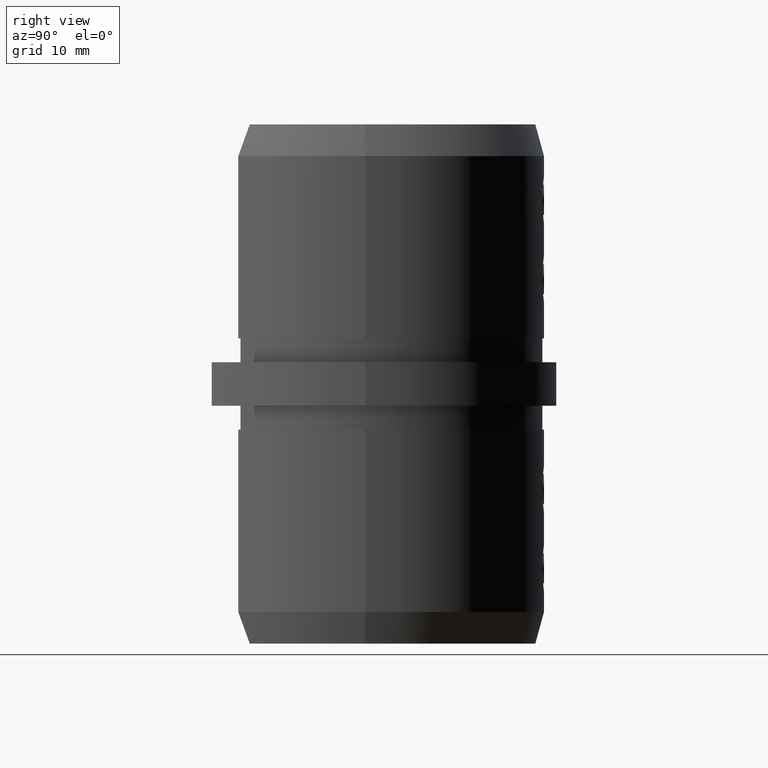
[diagram: clean part render]
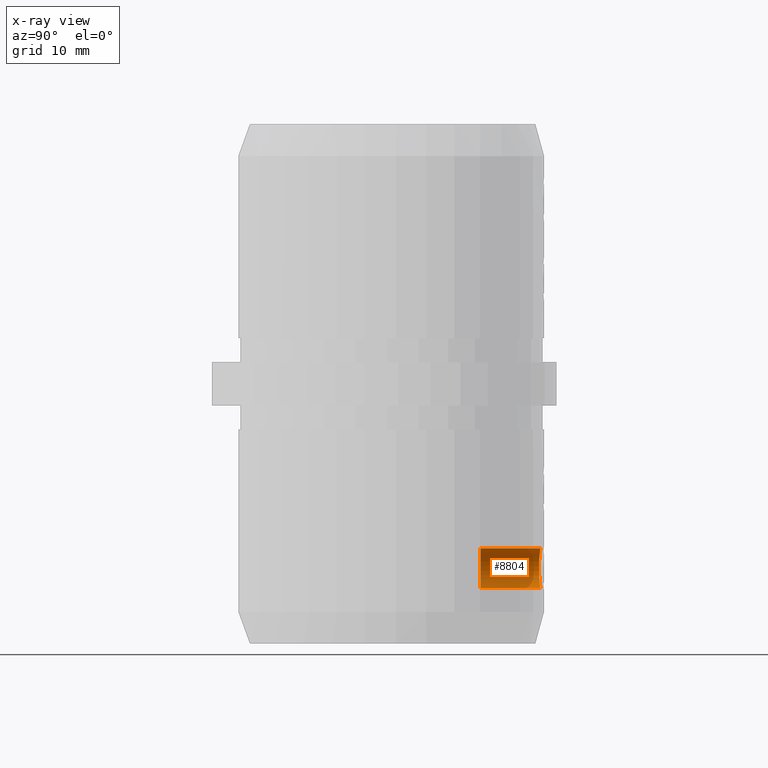
[diagram: x-ray — body ghosted, one internal face saturated and labeled with its STEP entity id]
A machine part, right view, then the same camera in x-ray: the body is ghosted and one INTERNAL B-rep face — a face not visible from any outside direction — is saturated and labeled: STEP entity #8804.
In plain terms, the highlighted cylindrical surface (edge-blend (fillet) strip) has radius 2.5 mm, axis along (0, -1, 0).
Its self-contained STEP definition (entity closure, byte-faithful):
#450 = VERTEX_POINT ( 'NONE', #2626 ) ;
#607 = VERTEX_POINT ( 'NONE', #18310 ) ;
#771 = DIRECTION ( 'NONE',  ( 0.0000000000000000000, 0.0000000000000000000, 1.000000000000000000 ) ) ;
#880 = CARTESIAN_POINT ( 'NONE',  ( -2.292983120268745200, 21.99141816133948900, -22.25305156649097400 ) ) ;
#1015 = CARTESIAN_POINT ( 'NONE',  ( -0.2847509243803166800, 22.14788986108721500, -20.76593492684926200 ) ) ;
#1088 = CARTESIAN_POINT ( 'NONE',  ( -1.213568255044008100, 22.10593495460642500, -21.06392528527055700 ) ) ;
#1169 = CARTESIAN_POINT ( 'NONE',  ( -1.650894172258326100, 22.06819132363886400, -25.12914229526788300 ) ) ;
#1237 = CARTESIAN_POINT ( 'NONE',  ( -0.9967863313151426000, 22.12038927817841800, -25.54304912313920900 ) ) ;
#1307 = CARTESIAN_POINT ( 'NONE',  ( -0.7681372788389454500, 22.13255594933633200, -25.62942003701284600 ) ) ;
#1376 = CARTESIAN_POINT ( 'NONE',  ( -2.057190390246440800, 22.02251045386027800, -24.67113877668603200 ) ) ;
#1445 = CARTESIAN_POINT ( 'NONE',  ( -2.435736324202206800, 21.97093788580954400, -22.68093806077536500 ) ) ;
#2451 = CARTESIAN_POINT ( 'NONE',  ( -0.7654449833223872000, 22.13268037902122000, -20.86971259934317000 ) ) ;
#2581 = CARTESIAN_POINT ( 'NONE',  ( -0.6475951645939612700, 22.13769928592403200, -20.83498234985427900 ) ) ;
#2626 = CARTESIAN_POINT ( 'NONE',  ( 0.0000000000000000000, 14.60000000000000000, -20.75000000000001100 ) ) ;
#2798 = CARTESIAN_POINT ( 'NONE',  ( -1.216178601106119700, 22.10574359763352300, -25.43462392852546800 ) ) ;
#2870 = CARTESIAN_POINT ( 'NONE',  ( -2.480019579879674000, 21.96432343748675100, -23.57584323722839100 ) ) ;
#2942 = CARTESIAN_POINT ( 'NONE',  ( -1.144081016189435900, 22.11087678328420100, -25.47322980531880200 ) ) ;
#3007 = CARTESIAN_POINT ( 'NONE',  ( -2.033660378672514000, 22.02542769086200300, -24.70461504022874200 ) ) ;
#3409 = CARTESIAN_POINT ( 'NONE',  ( 0.0000000000000000000, 14.60000000000000000, -23.25000000000000000 ) ) ;
#3977 = CARTESIAN_POINT ( 'NONE',  ( 0.0000000000000000000, 14.60000000000000100, -23.25000000000000000 ) ) ;
#4075 = CARTESIAN_POINT ( 'NONE',  ( -2.223095334505934800, 22.00099114357589500, -22.10566472250850700 ) ) ;
#4146 = CARTESIAN_POINT ( 'NONE',  ( -2.276384206087553900, 21.99371991982173900, -22.21571866378968700 ) ) ;
#4223 = CARTESIAN_POINT ( 'NONE',  ( -0.5272994195410698500, 22.14195788597984200, -20.80589437246492700 ) ) ;
#4290 = CARTESIAN_POINT ( 'NONE',  ( -1.878499780641288000, 22.04380448721416700, -21.59987592933498100 ) ) ;
#4358 = CARTESIAN_POINT ( 'NONE',  ( -2.242711401136413300, 21.99833356403103200, -24.35539948575312900 ) ) ;
#4428 = CARTESIAN_POINT ( 'NONE',  ( -1.033995601126281900, 22.11810929410043900, -25.52651350975921200 ) ) ;
#4497 = CARTESIAN_POINT ( 'NONE',  ( -0.4494029366992553500, 22.14424892383808100, -25.70961817555875200 ) ) ;
#4500 = CARTESIAN_POINT ( 'NONE',  ( -0.001850645534946095800, 22.15028157610912600, -25.74999948466982100 ) ) ;
#4556 = CARTESIAN_POINT ( 'NONE',  ( -1.556585925973928800, 22.07724053190082000, -25.20670555345172700 ) ) ;
#4632 = CARTESIAN_POINT ( 'NONE',  ( -1.357282191998328000, 22.09478192567434000, -25.34987527521396400 ) ) ;
#4860 = ORIENTED_EDGE ( 'NONE', *, *, #11110, .F. ) ;
#5620 = CARTESIAN_POINT ( 'NONE',  ( -0.9941371989826005600, 22.12054830374233900, -20.95580133291060300 ) ) ;
#5689 = CARTESIAN_POINT ( 'NONE',  ( -1.982748940744948300, 22.03160497090863500, -21.72713080616580000 ) ) ;
#5760 = CARTESIAN_POINT ( 'NONE',  ( -1.456521268031594900, 22.08634910284286000, -21.21770714482001800 ) ) ;
#5832 = CARTESIAN_POINT ( 'NONE',  ( -0.9189355390858382500, 22.12488523409878000, -20.92465835458422800 ) ) ;
#5972 = CARTESIAN_POINT ( 'NONE',  ( -0.6898510524489284100, 22.13599497977051200, -25.65328526708332600 ) ) ;
#6041 = CARTESIAN_POINT ( 'NONE',  ( -2.380942219422536700, 21.97894415771254700, -24.01342207941128100 ) ) ;
#6113 = CARTESIAN_POINT ( 'NONE',  ( -1.984624294022193600, 22.03137972332828600, -24.77042401768933300 ) ) ;
#6148 = VERTEX_POINT ( 'NONE', #6269 ) ;
#6184 = CARTESIAN_POINT ( 'NONE',  ( -1.425491913613060400, 22.08905168616393400, -25.30417916317992100 ) ) ;
#6252 = CARTESIAN_POINT ( 'NONE',  ( -1.797479572217719500, 22.05281524250483500, -24.98802358127597500 ) ) ;
#6269 = CARTESIAN_POINT ( 'NONE',  ( -3.061616997868370300E-016, 14.60000000000000000, -25.74999999999998900 ) ) ;
#7247 = CARTESIAN_POINT ( 'NONE',  ( -1.354723676355382700, 22.09499146214161400, -21.14847270401107300 ) ) ;
#7319 = CARTESIAN_POINT ( 'NONE',  ( -2.055481204376945500, 22.02272341495299600, -21.82638896065509800 ) ) ;
#7396 = CARTESIAN_POINT ( 'NONE',  ( -2.123550563184542400, 22.01415467317387700, -21.92818765777961300 ) ) ;
#7469 = CARTESIAN_POINT ( 'NONE',  ( -0.8042045014447523100, 22.13084530491960700, -20.88252956546657300 ) ) ;
#7531 = CARTESIAN_POINT ( 'NONE',  ( -0.8809497856616870200, 22.12694773802043000, -20.91000242841293800 ) ) ;
#7559 = CARTESIAN_POINT ( 'NONE',  ( -9.096257994911639300E-015, 22.15028165589723800, -25.74999999819781100 ) ) ;
#7597 = CARTESIAN_POINT ( 'NONE',  ( -0.5704540894283337500, 22.14053001052612400, -25.68439579923671100 ) ) ;
#7668 = CARTESIAN_POINT ( 'NONE',  ( -0.002775922596788522400, 22.15028142148017000, -25.74999845885026100 ) ) ;
#7691 = LINE ( 'NONE', #15198, #19322 ) ;
#7742 = CARTESIAN_POINT ( 'NONE',  ( -1.251838708683095100, 22.10308652045176800, -25.41439061401263200 ) ) ;
#7801 = CARTESIAN_POINT ( 'NONE',  ( -0.4089832398278381900, 22.14529430437870200, -25.71665889905715100 ) ) ;
#7873 = CARTESIAN_POINT ( 'NONE',  ( -1.959325154451814200, 22.03439988654000100, -24.80289060139584800 ) ) ;
#8804 = ADVANCED_FACE ( 'NONE', ( #10712 ), #18592, .F. ) ;
#8873 = CARTESIAN_POINT ( 'NONE',  ( -1.708961883686580500, 22.06227550503323400, -21.42350536194855300 ) ) ;
#8952 = CARTESIAN_POINT ( 'NONE',  ( -1.249242642735046300, 22.10328240496603800, -21.08411074450979700 ) ) ;
#9022 = CARTESIAN_POINT ( 'NONE',  ( -0.1630077294176920700, 22.14967998852111100, -20.75398721372849300 ) ) ;
#9090 = CARTESIAN_POINT ( 'NONE',  ( -1.141457939238801600, 22.11105761968156400, -21.02542265134438500 ) ) ;
#9158 = CARTESIAN_POINT ( 'NONE',  ( -1.031353104157768400, 22.11827386651590600, -20.97228838707495100 ) ) ;
#9231 = CARTESIAN_POINT ( 'NONE',  ( -2.224412072657927700, 22.00081357244085800, -24.39177323048359400 ) ) ;
#9296 = CARTESIAN_POINT ( 'NONE',  ( -2.495819732866158900, 21.96193623950958300, -23.08399557112384000 ) ) ;
#9362 = CARTESIAN_POINT ( 'NONE',  ( -0.9215983687561623000, 22.12473748876311000, -25.57428778708657200 ) ) ;
#9428 = CARTESIAN_POINT ( 'NONE',  ( -2.125111260784961200, 22.01395357398723400, -24.56930136175534000 ) ) ;
#9496 = CARTESIAN_POINT ( 'NONE',  ( -1.946435738101334400, 22.03592385266706800, -24.81901658131147700 ) ) ;
#9565 = AXIS2_PLACEMENT_3D ( 'NONE', #3409, #13141, #17818 ) ;
#9682 = B_SPLINE_CURVE_WITH_KNOTS ( 'NONE', 3,
 ( #20545, #4500, #11051, #17504 ),
 .UNSPECIFIED., .F., .F.,
 ( 4, 4 ),
 ( 0.5000000000000000000, 0.5001771055302192100 ),
 .UNSPECIFIED. ) ;
#10171 = ORIENTED_EDGE ( 'NONE', *, *, #14232, .T. ) ;
#10491 = CARTESIAN_POINT ( 'NONE',  ( -2.031892251763641100, 22.02564541426224000, -21.79291583588732800 ) ) ;
#10556 = CARTESIAN_POINT ( 'NONE',  ( -2.241440351484353100, 21.99850640002933100, -22.14202522010249300 ) ) ;
#10586 = DIRECTION ( 'NONE',  ( -0.0000000000000000000, -1.000000000000000000, 0.0000000000000000000 ) ) ;
#10622 = CARTESIAN_POINT ( 'NONE',  ( 0.0000000000000000000, 22.15028165348530800, -20.75000000000001100 ) ) ;
#10696 = CARTESIAN_POINT ( 'NONE',  ( -1.423026816542102300, 22.08926377687128500, -21.19411196922532200 ) ) ;
#10712 = FACE_OUTER_BOUND ( 'NONE', #16069, .T. ) ;
#10747 = AXIS2_PLACEMENT_3D ( 'NONE', #3977, #10586, #771 ) ;
#10770 = ORIENTED_EDGE ( 'NONE', *, *, #12487, .F. ) ;
#10837 = CARTESIAN_POINT ( 'NONE',  ( -2.416592352280113600, 21.97376683275005100, -23.89559018064081600 ) ) ;
#10907 = CARTESIAN_POINT ( 'NONE',  ( -0.1658028708923769400, 22.14965230168424500, -25.74582886344321500 ) ) ;
#10921 = CARTESIAN_POINT ( 'NONE',  ( -3.061616997868368400E-016, 14.60000000000000100, -25.74999999999998900 ) ) ;
#10981 = CARTESIAN_POINT ( 'NONE',  ( -0.8068891258324371000, 22.13071495079733000, -25.61655694950207300 ) ) ;
#11047 = CARTESIAN_POINT ( 'NONE',  ( -2.495998668997761800, 21.96190907041188100, -23.41328086444716300 ) ) ;
#11051 = CARTESIAN_POINT ( 'NONE',  ( -0.0009253380055504097900, 22.15028165341674400, -25.74999999723344900 ) ) ;
#11110 = EDGE_CURVE ( 'NONE', #18724, #607, #20208, .T. ) ;
#11111 = CARTESIAN_POINT ( 'NONE',  ( -1.107642938376212100, 22.11335305216725200, -25.49160383777822900 ) ) ;
#12199 = CARTESIAN_POINT ( 'NONE',  ( -1.995206779100227700, 22.03010450721801000, -21.74348991648638600 ) ) ;
#12270 = CARTESIAN_POINT ( 'NONE',  ( -0.6871426145726278200, 22.13610735861911000, -20.84593903641297200 ) ) ;
#12272 = DIRECTION ( 'NONE',  ( -0.0000000000000000000, -1.000000000000000000, 0.0000000000000000000 ) ) ;
#12273 = ORIENTED_EDGE ( 'NONE', *, *, #20075, .F. ) ;
#12336 = CARTESIAN_POINT ( 'NONE',  ( -1.554271246890567100, 22.07745810842103000, -21.29145524569349800 ) ) ;
#12337 = CARTESIAN_POINT ( 'NONE',  ( 0.0000000000000000000, 22.15028165348530800, -20.75000000000001100 ) ) ;
#12475 = CARTESIAN_POINT ( 'NONE',  ( -2.500043865131232200, 21.96129339114901300, -23.33133612370465600 ) ) ;
#12487 = EDGE_CURVE ( 'NONE', #13713, #6148, #16843, .T. ) ;
#12548 = CARTESIAN_POINT ( 'NONE',  ( -0.8836196769361112100, 22.12680572606612000, -25.58899083877542700 ) ) ;
#12615 = CARTESIAN_POINT ( 'NONE',  ( -2.325461545531017000, 21.98686882036887300, -24.16864368172940300 ) ) ;
#12684 = CARTESIAN_POINT ( 'NONE',  ( -2.294120187178499700, 21.99125994529189000, -24.24432903496513700 ) ) ;
#12751 = CARTESIAN_POINT ( 'NONE',  ( -2.468084529795180300, 21.96612227503271700, -23.65644727890521200 ) ) ;
#13141 = DIRECTION ( 'NONE',  ( 0.0000000000000000000, 1.000000000000000000, -0.0000000000000000000 ) ) ;
#13713 = VERTEX_POINT ( 'NONE', #7559 ) ;
#13759 = CARTESIAN_POINT ( 'NONE',  ( -2.165456446637028100, 22.00869135383663900, -21.99803185297819400 ) ) ;
#13828 = CARTESIAN_POINT ( 'NONE',  ( -1.795400978654152000, 22.05304113150570400, -21.50982955933890400 ) ) ;
#14034 = CARTESIAN_POINT ( 'NONE',  ( -2.277565419061949200, 21.99355676141226100, -24.28167736564425300 ) ) ;
#14114 = CARTESIAN_POINT ( 'NONE',  ( -0.3280617873791723000, 22.14709036382083300, -25.72871920861777900 ) ) ;
#14178 = CARTESIAN_POINT ( 'NONE',  ( -2.467629835078246200, 21.96619050235003100, -22.84079801367874700 ) ) ;
#14232 = EDGE_CURVE ( 'NONE', #18724, #450, #7691, .T. ) ;
#14246 = CARTESIAN_POINT ( 'NONE',  ( -2.367104685694956700, 21.98093919913673100, -22.44469271494164900 ) ) ;
#14312 = CARTESIAN_POINT ( 'NONE',  ( -1.711118456631178600, 22.06205237094620500, -25.07447549955049500 ) ) ;
#15198 = CARTESIAN_POINT ( 'NONE',  ( 0.0000000000000000000, 14.60000000000000100, -20.75000000000001100 ) ) ;
#15337 = CARTESIAN_POINT ( 'NONE',  ( -0.4062080492182088000, 22.14536244730080100, -20.78288258155344800 ) ) ;
#15404 = CARTESIAN_POINT ( 'NONE',  ( -1.944480133569029200, 22.03615414698609600, -21.67856060559340400 ) ) ;
#15473 = CARTESIAN_POINT ( 'NONE',  ( -2.324411854113011900, 21.98701690962903800, -22.32870349332144900 ) ) ;
#15608 = CARTESIAN_POINT ( 'NONE',  ( -0.4466356626911851500, 22.14432362169667500, -20.78987781312858000 ) ) ;
#15677 = CARTESIAN_POINT ( 'NONE',  ( -1.458948142877463800, 22.08613538054248000, -25.28055111346479900 ) ) ;
#15730 = EDGE_CURVE ( 'NONE', #6148, #450, #19280, .T. ) ;
#15756 = CARTESIAN_POINT ( 'NONE',  ( -0.2875413929228238800, 22.14784177077436300, -25.73374365965152000 ) ) ;
#15822 = CARTESIAN_POINT ( 'NONE',  ( -2.368024913393634200, 21.98080695771123800, -24.05259740614533500 ) ) ;
#15888 = CARTESIAN_POINT ( 'NONE',  ( -1.997056409108423500, 22.02988094250190800, -24.75405698881651900 ) ) ;
#15951 = CARTESIAN_POINT ( 'NONE',  ( -1.907281657585823400, 22.04050550683322700, -24.86677741453004800 ) ) ;
#16069 = EDGE_LOOP ( 'NONE', ( #10770, #12273, #4860, #10171, #20281 ) ) ;
#16338 = VECTOR ( 'NONE', #17305, 1000.000000000000000 ) ;
#16843 = LINE ( 'NONE', #10921, #16338 ) ;
#16947 = CARTESIAN_POINT ( 'NONE',  ( -1.319765672464237900, 22.09781557003745100, -21.12634425905550400 ) ) ;
#17017 = CARTESIAN_POINT ( 'NONE',  ( -1.648679713869304800, 22.06841238742466900, -21.36891420365369900 ) ) ;
#17157 = CARTESIAN_POINT ( 'NONE',  ( -1.105013469293965500, 22.11352852998789600, -21.00709905887452000 ) ) ;
#17293 = CARTESIAN_POINT ( 'NONE',  ( -1.825602989308400900, 22.04973137372754300, -24.95846312624033900 ) ) ;
#17305 = DIRECTION ( 'NONE',  ( -0.0000000000000000000, -1.000000000000000000, 0.0000000000000000000 ) ) ;
#17365 = CARTESIAN_POINT ( 'NONE',  ( -0.08440778396995454700, 22.15026777946566500, -25.74990795670978000 ) ) ;
#17432 = CARTESIAN_POINT ( 'NONE',  ( -2.340239125547019000, 21.98477579635467200, -24.13033151083821100 ) ) ;
#17499 = CARTESIAN_POINT ( 'NONE',  ( -1.880507054633676000, 22.04357617381328200, -24.89783667297199800 ) ) ;
#17504 = CARTESIAN_POINT ( 'NONE',  ( -9.096257994911639300E-015, 22.15028165589723800, -25.74999999819781100 ) ) ;
#17565 = CARTESIAN_POINT ( 'NONE',  ( -1.322364795512530800, 22.09760830439861200, -25.37203870641107200 ) ) ;
#17818 = DIRECTION ( 'NONE',  ( 0.0000000000000000000, 0.0000000000000000000, 1.000000000000000000 ) ) ;
#18310 = CARTESIAN_POINT ( 'NONE',  ( -0.002775922596788522400, 22.15028142148017000, -25.74999845885026100 ) ) ;
#18575 = CARTESIAN_POINT ( 'NONE',  ( -1.522136471447621100, 22.08044680487097400, -21.26637476948131300 ) ) ;
#18592 = CYLINDRICAL_SURFACE ( 'NONE', #10747, 2.499999999999988500 ) ;
#18647 = CARTESIAN_POINT ( 'NONE',  ( -1.957383571392165000, 22.03463007195184500, -21.69466260771929500 ) ) ;
#18724 = VERTEX_POINT ( 'NONE', #12337 ) ;
#18776 = CARTESIAN_POINT ( 'NONE',  ( -0.3252749929894697100, 22.14714520374590700, -20.77091356508955000 ) ) ;
#18912 = CARTESIAN_POINT ( 'NONE',  ( -0.5300465010261113900, 22.14187037436112600, -25.69351131477092000 ) ) ;
#18981 = CARTESIAN_POINT ( 'NONE',  ( -2.380069442954615900, 21.97907027464329800, -22.48386105601501200 ) ) ;
#19051 = CARTESIAN_POINT ( 'NONE',  ( -2.415859141039188100, 21.97387450523002900, -22.60166964318253200 ) ) ;
#19119 = CARTESIAN_POINT ( 'NONE',  ( -2.479657524498743100, 21.96437800499249000, -22.92140756127001600 ) ) ;
#19177 = CARTESIAN_POINT ( 'NONE',  ( -1.524486786914902800, 22.08023045669601800, -25.23181926072748000 ) ) ;
#19280 = CIRCLE ( 'NONE', #9565, 2.499999999999988500 ) ;
#19322 = VECTOR ( 'NONE', #12272, 1000.000000000000000 ) ;
#20075 = EDGE_CURVE ( 'NONE', #607, #13713, #9682, .T. ) ;
#20185 = CARTESIAN_POINT ( 'NONE',  ( -1.905302666884233000, 22.04073381817267200, -21.63089211816639000 ) ) ;
#20208 = B_SPLINE_CURVE_WITH_KNOTS ( 'NONE', 3,
 ( #10622, #20327, #9022, #1015, #18776, #15337, #15608, #4223, #20257, #2581, #12270, #2451, #7469, #7531, #5832, #5620, #9158, #17157, #9090, #1088, #8952, #16947, #7247, #10696, #5760, #18575, #12336, #17017, #8873, #13828, #20398, #4290, #20185, #15404, #18647, #5689, #12199, #10491, #7319, #7396, #13759, #4075, #10556, #4146, #880, #15473, #20681, #14246, #18981, #19051, #1445, #14178, #19119, #9296, #20749, #12475, #11047, #2870, #12751, #20815, #10837, #6041, #15822, #17432, #12615, #12684, #14034, #4358, #9231, #20614, #9428, #1376, #3007, #15888, #6113, #7873, #9496, #15951, #17499, #17293, #6252, #14312, #1169, #4556, #19177, #15677, #6184, #4632, #17565, #7742, #2798, #2942, #11111, #4428, #1237, #9362, #12548, #10981, #1307, #5972, #20540, #7597, #18912, #4497, #7801, #14114, #15756, #10907, #17365, #7668 ),
 .UNSPECIFIED., .F., .F.,
 ( 4, 2, 2, 2, 2, 2, 2, 2, 2, 2, 2, 2, 2, 2, 2, 2, 2, 2, 2, 2, 2, 2, 2, 2, 2, 2, 2, 2, 2, 2, 2, 2, 2, 2, 2, 2, 2, 2, 2, 2, 2, 2, 2, 2, 2, 2, 2, 2, 2, 2, 2, 2, 2, 2, 4 ),
 ( 0.0000000000000000000, 0.01562499999999999500, 0.02343749999999999000, 0.03124999999999999000, 0.03906249999999998600, 0.04687499999999997900, 0.05468749999999997900, 0.06249999999999997900, 0.07031249999999997200, 0.07812499999999997200, 0.08593749999999997200, 0.09374999999999995800, 0.1015624999999999600, 0.1093749999999999600, 0.1249999999999999600, 0.1328124999999999400, 0.1406249999999999400, 0.1445312499999999400, 0.1484374999999999400, 0.1562499999999999400, 0.1718749999999999400, 0.1796874999999999400, 0.1874999999999999200, 0.1953124999999999200, 0.2031249999999999200, 0.2187499999999999200, 0.2343749999999999200, 0.2500000000000000000, 0.2656250000000001100, 0.2812500000000001100, 0.2968750000000000600, 0.3046875000000000600, 0.3125000000000000600, 0.3203125000000000600, 0.3281250000000000600, 0.3437500000000000600, 0.3515625000000000600, 0.3554687500000000600, 0.3593750000000000600, 0.3671875000000000600, 0.3750000000000000600, 0.3906250000000000600, 0.3984375000000000600, 0.4062500000000000600, 0.4140625000000000600, 0.4218750000000000600, 0.4296875000000000000, 0.4375000000000000000, 0.4453125000000000000, 0.4531250000000000000, 0.4609375000000000000, 0.4687500000000000000, 0.4765625000000000000, 0.4843750000000000000, 0.5000000000000000000 ),
 .UNSPECIFIED. ) ;
#20257 = CARTESIAN_POINT ( 'NONE',  ( -0.5677199143672465600, 22.14062376942598900, -20.81496514951744500 ) ) ;
#20281 = ORIENTED_EDGE ( 'NONE', *, *, #15730, .F. ) ;
#20327 = CARTESIAN_POINT ( 'NONE',  ( -0.08161797902860074000, 22.15028165655633100, -20.74999986165933700 ) ) ;
#20398 = CARTESIAN_POINT ( 'NONE',  ( -1.823548906067653700, 22.04995812036148800, -21.53934506554764600 ) ) ;
#20540 = CARTESIAN_POINT ( 'NONE',  ( -0.6503127527833979500, 22.13759301219766900, -25.66428735363659200 ) ) ;
#20545 = CARTESIAN_POINT ( 'NONE',  ( -0.002775922596788522400, 22.15028142148017000, -25.74999845885026100 ) ) ;
#20614 = CARTESIAN_POINT ( 'NONE',  ( -2.166913502047489000, 22.00849985343779000, -24.49944312028859600 ) ) ;
#20681 = CARTESIAN_POINT ( 'NONE',  ( -2.339232620322897900, 21.98491870612465200, -22.36699772754652900 ) ) ;
#20749 = CARTESIAN_POINT ( 'NONE',  ( -2.499955419396296700, 21.96130682032901000, -23.16598904445217100 ) ) ;
#20815 = CARTESIAN_POINT ( 'NONE',  ( -2.436376798896294100, 21.97084307641650000, -23.81631120878380900 ) ) ;